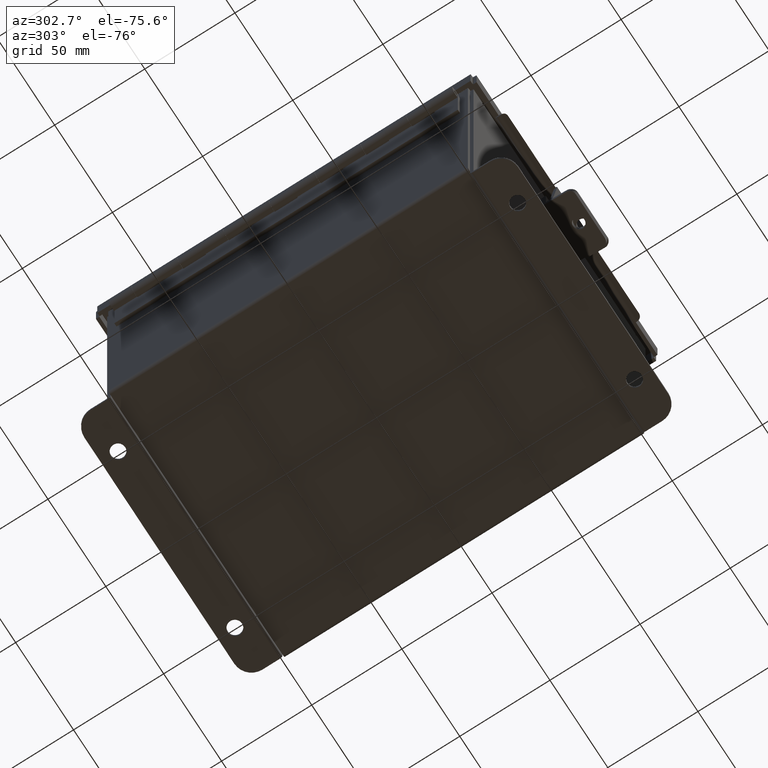
[diagram: clean part render]
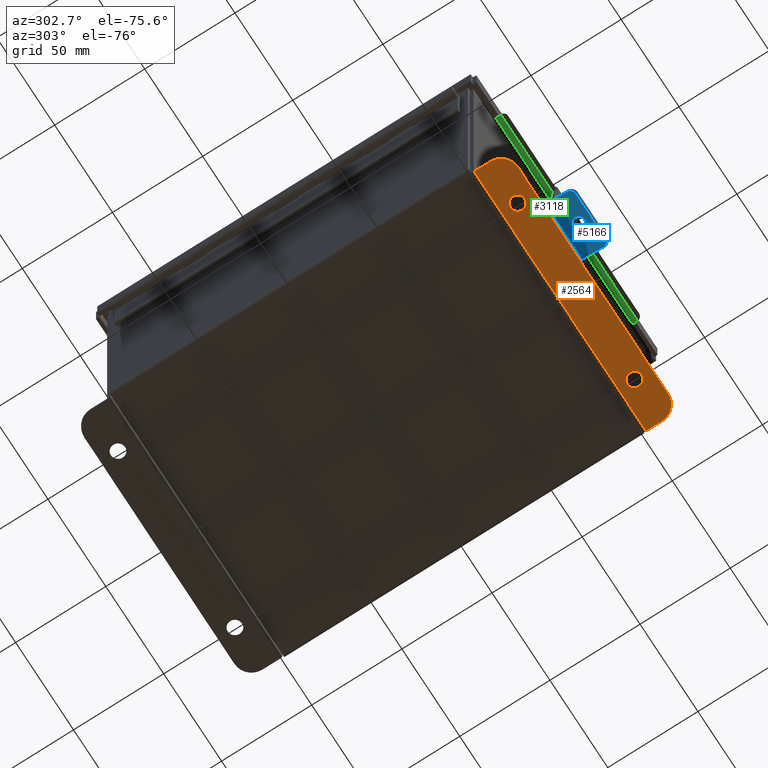
[diagram: same view with three faces highlighted in distinct colors, each labeled with its STEP entity id]
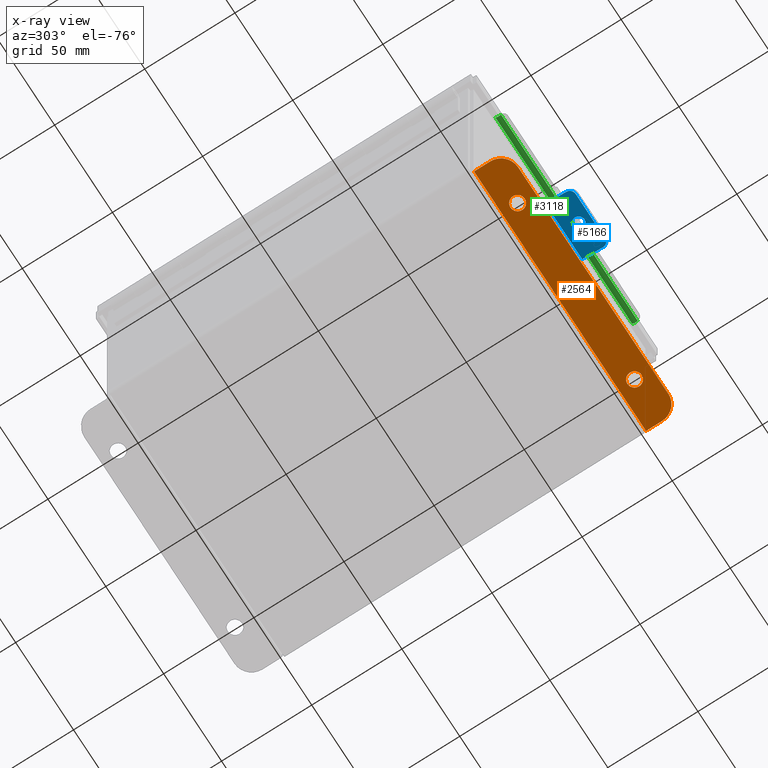
[diagram: x-ray of the same camera — body ghosted, the three highlighted faces saturated]
A machine part, auxiliary view with three faces highlighted in distinct colors.
The next image is the same camera in x-ray (body ghosted, the three faces saturated) — at least one of them is partly hidden behind the body in this view.
Their STEP definitions:

[orange] entity #2564 — the highlighted planar face has unit normal (0, -0, 1).
#272 = ORIENTED_EDGE ( 'NONE', *, *, #602, .T. ) ;
#602 = EDGE_CURVE ( 'NONE', #7254, #8454, #1671, .T. ) ;
#752 = EDGE_CURVE ( 'NONE', #11165, #7948, #15070, .T. ) ;
#768 = ORIENTED_EDGE ( 'NONE', *, *, #1474, .T. ) ;
#790 = CARTESIAN_POINT ( 'NONE',  ( 2.550300000000001300, 0.3628000000000002900, -3.186999999999997600 ) ) ;
#815 = CARTESIAN_POINT ( 'NONE',  ( -2.925299999999997800, 0.01299999999999628200, -3.186999999999996300 ) ) ;
#867 = VECTOR ( 'NONE', #3987, 39.37007874015748100 ) ;
#943 = DIRECTION ( 'NONE',  ( 0.0000000000000000000, 1.000000000000000000, -3.502369222646487000E-015 ) ) ;
#1185 = CARTESIAN_POINT ( 'NONE',  ( 2.925300000000001800, -1.092739197465705300E-014, -3.187000000000000700 ) ) ;
#1474 = EDGE_CURVE ( 'NONE', #13616, #7254, #5716, .T. ) ;
#1671 = LINE ( 'NONE', #1185, #4265 ) ;
#1682 = CARTESIAN_POINT ( 'NONE',  ( 0.0000000000000000000, -1.092739197465705300E-014, -3.187000000000000700 ) ) ;
#1700 = CARTESIAN_POINT ( 'NONE',  ( -1.987799999999997800, 0.3627999999999997300, -3.187000000000001600 ) ) ;
#1791 = CARTESIAN_POINT ( 'NONE',  ( 2.550300000000001300, 0.7378000000000000100, -3.187000000000003400 ) ) ;
#1816 = CARTESIAN_POINT ( 'NONE',  ( -2.925299999999998200, 0.3627999999999959000, -3.187000000000001600 ) ) ;
#1922 = CARTESIAN_POINT ( 'NONE',  ( -2.550299999999996900, 0.7377999999999955700, -3.187000000000003400 ) ) ;
#1983 = DIRECTION ( 'NONE',  ( 0.0000000000000000000, -1.000000000000000000, 4.370956789862820400E-015 ) ) ;
#2005 = AXIS2_PLACEMENT_3D ( 'NONE', #790, #9066, #1983 ) ;
#2140 = LINE ( 'NONE', #9601, #5641 ) ;
#2185 = CIRCLE ( 'NONE', #13813, 0.1560000000000001900 ) ;
#2355 = EDGE_CURVE ( 'NONE', #13147, #8929, #2140, .T. ) ;
#2515 = DIRECTION ( 'NONE',  ( 4.919856193148104900E-031, 1.000000000000000000, -3.702694488566362300E-015 ) ) ;
#2564 = ADVANCED_FACE ( 'NONE', ( #8629, #5820, #14595 ), #13529, .F. ) ;
#2825 = VERTEX_POINT ( 'NONE', #12725 ) ;
#2853 = VERTEX_POINT ( 'NONE', #14027 ) ;
#2880 = DIRECTION ( 'NONE',  ( 0.0000000000000000000, 3.702694488566362300E-015, 1.000000000000000000 ) ) ;
#2891 = DIRECTION ( 'NONE',  ( 0.0000000000000000000, 1.000000000000000000, -3.502369222646487000E-015 ) ) ;
#2902 = ORIENTED_EDGE ( 'NONE', *, *, #7204, .F. ) ;
#2931 = CARTESIAN_POINT ( 'NONE',  ( 1.987800000000002000, 0.3627999999999997300, -3.187000000000001600 ) ) ;
#3595 = CARTESIAN_POINT ( 'NONE',  ( 2.925300000000001800, 0.3628000000000002900, -3.187000000000001600 ) ) ;
#3677 = EDGE_CURVE ( 'NONE', #8929, #12516, #6740, .T. ) ;
#3987 = DIRECTION ( 'NONE',  ( 1.000000000000000000, 4.910036603141682400E-031, -0.0000000000000000000 ) ) ;
#4003 = LINE ( 'NONE', #14661, #867 ) ;
#4103 = DIRECTION ( 'NONE',  ( 0.0000000000000000000, 1.000000000000000000, -3.502369222646487000E-015 ) ) ;
#4129 = ORIENTED_EDGE ( 'NONE', *, *, #752, .F. ) ;
#4171 = ORIENTED_EDGE ( 'NONE', *, *, #11869, .F. ) ;
#4265 = VECTOR ( 'NONE', #11795, 39.37007874015748100 ) ;
#4457 = DIRECTION ( 'NONE',  ( 0.0000000000000000000, -3.362274453740631800E-015, -1.000000000000000000 ) ) ;
#4797 = CARTESIAN_POINT ( 'NONE',  ( 1.987800000000002000, 0.5187999999999999300, -3.187000000000002500 ) ) ;
#5180 = EDGE_LOOP ( 'NONE', ( #9231, #12083, #14900, #768, #272, #15288 ) ) ;
#5320 = DIRECTION ( 'NONE',  ( -0.0000000000000000000, -3.702694488566362300E-015, -1.000000000000000000 ) ) ;
#5641 = VECTOR ( 'NONE', #2515, 39.37007874015748100 ) ;
#5657 = AXIS2_PLACEMENT_3D ( 'NONE', #1700, #9980, #2891 ) ;
#5716 = CIRCLE ( 'NONE', #2005, 0.3750000000000000600 ) ;
#5820 = FACE_BOUND ( 'NONE', #13061, .T. ) ;
#6740 = CIRCLE ( 'NONE', #7089, 0.3750000000000000600 ) ;
#7089 = AXIS2_PLACEMENT_3D ( 'NONE', #12464, #5320, #13667 ) ;
#7204 = EDGE_CURVE ( 'NONE', #2853, #2825, #2185, .T. ) ;
#7254 = VERTEX_POINT ( 'NONE', #3595 ) ;
#7545 = CARTESIAN_POINT ( 'NONE',  ( -2.035385365534024800E-024, 0.7378000000000000100, -3.187000000000003400 ) ) ;
#7948 = VERTEX_POINT ( 'NONE', #4797 ) ;
#8060 = DIRECTION ( 'NONE',  ( 0.0000000000000000000, -3.362274453740631800E-015, -1.000000000000000000 ) ) ;
#8148 = EDGE_CURVE ( 'NONE', #13147, #8454, #4003, .T. ) ;
#8454 = VERTEX_POINT ( 'NONE', #15202 ) ;
#8629 = FACE_BOUND ( 'NONE', #12490, .T. ) ;
#8929 = VERTEX_POINT ( 'NONE', #1816 ) ;
#9066 = DIRECTION ( 'NONE',  ( -0.0000000000000000000, -3.702694488566362300E-015, -1.000000000000000000 ) ) ;
#9231 = ORIENTED_EDGE ( 'NONE', *, *, #2355, .T. ) ;
#9233 = AXIS2_PLACEMENT_3D ( 'NONE', #2931, #11225, #4103 ) ;
#9601 = CARTESIAN_POINT ( 'NONE',  ( -2.925299999999998200, -1.529834876451987200E-014, -3.186999999999996300 ) ) ;
#9980 = DIRECTION ( 'NONE',  ( 0.0000000000000000000, -3.362274453740631800E-015, -1.000000000000000000 ) ) ;
#10064 = VECTOR ( 'NONE', #14653, 39.37007874015748100 ) ;
#10716 = CIRCLE ( 'NONE', #13856, 0.1560000000000001900 ) ;
#10990 = EDGE_CURVE ( 'NONE', #2825, #2853, #11653, .T. ) ;
#11163 = DIRECTION ( 'NONE',  ( -4.919856193148104900E-031, -1.000000000000000000, 3.702694488566362300E-015 ) ) ;
#11165 = VERTEX_POINT ( 'NONE', #11435 ) ;
#11225 = DIRECTION ( 'NONE',  ( 0.0000000000000000000, -3.362274453740631800E-015, -1.000000000000000000 ) ) ;
#11435 = CARTESIAN_POINT ( 'NONE',  ( 1.987800000000002000, 0.2067999999999996000, -3.187000000000001200 ) ) ;
#11584 = CARTESIAN_POINT ( 'NONE',  ( -1.987799999999997800, 0.3627999999999997300, -3.187000000000001600 ) ) ;
#11653 = CIRCLE ( 'NONE', #5657, 0.1560000000000001900 ) ;
#11795 = DIRECTION ( 'NONE',  ( -4.919856193148104900E-031, -1.000000000000000000, 3.702694488566362300E-015 ) ) ;
#11869 = EDGE_CURVE ( 'NONE', #7948, #11165, #10716, .T. ) ;
#12083 = ORIENTED_EDGE ( 'NONE', *, *, #3677, .T. ) ;
#12464 = CARTESIAN_POINT ( 'NONE',  ( -2.550299999999996900, 0.3627999999999997300, -3.187000000000001600 ) ) ;
#12490 = EDGE_LOOP ( 'NONE', ( #12827, #2902 ) ) ;
#12516 = VERTEX_POINT ( 'NONE', #1922 ) ;
#12725 = CARTESIAN_POINT ( 'NONE',  ( -1.987799999999997800, 0.5187999999999999300, -3.187000000000002500 ) ) ;
#12791 = DIRECTION ( 'NONE',  ( 0.0000000000000000000, 1.000000000000000000, -3.502369222646487000E-015 ) ) ;
#12827 = ORIENTED_EDGE ( 'NONE', *, *, #10990, .F. ) ;
#13061 = EDGE_LOOP ( 'NONE', ( #4171, #4129 ) ) ;
#13062 = AXIS2_PLACEMENT_3D ( 'NONE', #1682, #2880, #11163 ) ;
#13147 = VERTEX_POINT ( 'NONE', #815 ) ;
#13250 = LINE ( 'NONE', #7545, #10064 ) ;
#13529 = PLANE ( 'NONE',  #13062 ) ;
#13616 = VERTEX_POINT ( 'NONE', #1791 ) ;
#13667 = DIRECTION ( 'NONE',  ( 0.0000000000000000000, -1.000000000000000000, 4.370956789862820400E-015 ) ) ;
#13813 = AXIS2_PLACEMENT_3D ( 'NONE', #11584, #4457, #12791 ) ;
#13856 = AXIS2_PLACEMENT_3D ( 'NONE', #15173, #8060, #943 ) ;
#14027 = CARTESIAN_POINT ( 'NONE',  ( -1.987799999999997800, 0.2067999999999996000, -3.187000000000001200 ) ) ;
#14595 = FACE_OUTER_BOUND ( 'NONE', #5180, .T. ) ;
#14653 = DIRECTION ( 'NONE',  ( 1.000000000000000000, 4.910036603141682400E-031, 0.0000000000000000000 ) ) ;
#14661 = CARTESIAN_POINT ( 'NONE',  ( 2.925300000000001800, 0.01300000000000065300, -3.187000000000000700 ) ) ;
#14900 = ORIENTED_EDGE ( 'NONE', *, *, #15314, .T. ) ;
#15070 = CIRCLE ( 'NONE', #9233, 0.1560000000000001900 ) ;
#15173 = CARTESIAN_POINT ( 'NONE',  ( 1.987800000000002000, 0.3627999999999997300, -3.187000000000001600 ) ) ;
#15202 = CARTESIAN_POINT ( 'NONE',  ( 2.925300000000001800, 0.01300000000000010700, -3.187000000000000700 ) ) ;
#15288 = ORIENTED_EDGE ( 'NONE', *, *, #8148, .F. ) ;
#15314 = EDGE_CURVE ( 'NONE', #12516, #13616, #13250, .T. ) ;

[blue] entity #5166 — the highlighted planar face has unit normal (0, -0.1564, 0.9877).
#260 = ORIENTED_EDGE ( 'NONE', *, *, #6632, .T. ) ;
#329 = DIRECTION ( 'NONE',  ( 0.0000000000000000000, -0.1564344650402350000, 0.9876883405951369900 ) ) ;
#502 = DIRECTION ( 'NONE',  ( 0.0000000000000000000, -0.1564344650402344800, 0.9876883405951372200 ) ) ;
#757 = LINE ( 'NONE', #13355, #3507 ) ;
#806 = CARTESIAN_POINT ( 'NONE',  ( 0.6249999999999997800, -0.3825291922937684200, 0.5715788249670738000 ) ) ;
#1635 = VERTEX_POINT ( 'NONE', #2481 ) ;
#1715 = VERTEX_POINT ( 'NONE', #3812 ) ;
#2108 = LINE ( 'NONE', #11803, #10819 ) ;
#2481 = CARTESIAN_POINT ( 'NONE',  ( 0.4999999999999997200, -0.3825291922937684200, 0.5715788249670738000 ) ) ;
#2568 = CIRCLE ( 'NONE', #2961, 0.1250000000000000300 ) ;
#2961 = AXIS2_PLACEMENT_3D ( 'NONE', #4734, #13081, #5927 ) ;
#3110 = VERTEX_POINT ( 'NONE', #4299 ) ;
#3288 = CARTESIAN_POINT ( 'NONE',  ( 0.6249999999999997800, -0.3629748841637390800, 0.4481177823926816800 ) ) ;
#3346 = ORIENTED_EDGE ( 'NONE', *, *, #5311, .F. ) ;
#3507 = VECTOR ( 'NONE', #5015, 39.37007874015748100 ) ;
#3580 = PLANE ( 'NONE',  #12686 ) ;
#3581 = VERTEX_POINT ( 'NONE', #13414 ) ;
#3812 = CARTESIAN_POINT ( 'NONE',  ( 0.6249999999999997800, -0.2906256832361269700, -0.008677094549546618100 ) ) ;
#4299 = CARTESIAN_POINT ( 'NONE',  ( -0.5000000000000002200, -0.3825291922937684200, 0.5715788249670738000 ) ) ;
#4344 = AXIS2_PLACEMENT_3D ( 'NONE', #4628, #12972, #5832 ) ;
#4628 = CARTESIAN_POINT ( 'NONE',  ( 0.0000000000000000000, -0.3424819692434683000, 0.3187306097747185700 ) ) ;
#4734 = CARTESIAN_POINT ( 'NONE',  ( 0.4999999999999997200, -0.3629748841637390800, 0.4481177823926816800 ) ) ;
#4756 = DIRECTION ( 'NONE',  ( 0.0000000000000000000, -0.1564344650402347500, 0.9876883405951371000 ) ) ;
#5015 = DIRECTION ( 'NONE',  ( -1.000000000000000000, 0.0000000000000000000, 0.0000000000000000000 ) ) ;
#5166 = ADVANCED_FACE ( 'NONE', ( #10587, #7827 ), #3580, .F. ) ;
#5211 = AXIS2_PLACEMENT_3D ( 'NONE', #14721, #7599, #502 ) ;
#5311 = EDGE_CURVE ( 'NONE', #3581, #11428, #8729, .T. ) ;
#5605 = VERTEX_POINT ( 'NONE', #10371 ) ;
#5763 = EDGE_LOOP ( 'NONE', ( #13405, #6939, #12876, #11646, #11937, #260 ) ) ;
#5832 = DIRECTION ( 'NONE',  ( 0.0000000000000000000, -0.1564344650402344800, 0.9876883405951372200 ) ) ;
#5927 = DIRECTION ( 'NONE',  ( 0.0000000000000000000, -0.1564344650402350000, 0.9876883405951369900 ) ) ;
#6446 = LINE ( 'NONE', #806, #12392 ) ;
#6571 = AXIS2_PLACEMENT_3D ( 'NONE', #14548, #7432, #329 ) ;
#6632 = EDGE_CURVE ( 'NONE', #12670, #1635, #2568, .T. ) ;
#6939 = ORIENTED_EDGE ( 'NONE', *, *, #10108, .T. ) ;
#7132 = CARTESIAN_POINT ( 'NONE',  ( 1.530808498934191800E-017, -0.3229276611134389000, 0.1952695672003264000 ) ) ;
#7432 = DIRECTION ( 'NONE',  ( 0.0000000000000000000, -0.9876883405951371000, -0.1564344650402347500 ) ) ;
#7599 = DIRECTION ( 'NONE',  ( 0.0000000000000000000, -0.9876883405951371000, -0.1564344650402347500 ) ) ;
#7647 = EDGE_CURVE ( 'NONE', #1715, #12670, #6446, .T. ) ;
#7827 = FACE_OUTER_BOUND ( 'NONE', #5763, .T. ) ;
#8513 = EDGE_CURVE ( 'NONE', #11428, #3581, #12554, .T. ) ;
#8527 = LINE ( 'NONE', #10317, #12054 ) ;
#8729 = CIRCLE ( 'NONE', #5211, 0.1250000000000000000 ) ;
#9491 = CARTESIAN_POINT ( 'NONE',  ( -0.6250000000000003300, -0.3825291922937684200, 0.5715788249670738000 ) ) ;
#10108 = EDGE_CURVE ( 'NONE', #3110, #5605, #10578, .T. ) ;
#10109 = EDGE_CURVE ( 'NONE', #1635, #3110, #757, .T. ) ;
#10317 = CARTESIAN_POINT ( 'NONE',  ( -0.6250000000000003300, -0.3825291922937684200, 0.5715788249670738000 ) ) ;
#10371 = CARTESIAN_POINT ( 'NONE',  ( -0.6250000000000003300, -0.3629748841637390800, 0.4481177823926816800 ) ) ;
#10514 = EDGE_CURVE ( 'NONE', #5605, #13054, #8527, .T. ) ;
#10578 = CIRCLE ( 'NONE', #6571, 0.1250000000000000300 ) ;
#10587 = FACE_BOUND ( 'NONE', #12859, .T. ) ;
#10666 = DIRECTION ( 'NONE',  ( -1.000000000000000000, -1.333134263018087700E-017, 8.417078472395434900E-017 ) ) ;
#10819 = VECTOR ( 'NONE', #10666, 39.37007874015748100 ) ;
#11428 = VERTEX_POINT ( 'NONE', #7132 ) ;
#11646 = ORIENTED_EDGE ( 'NONE', *, *, #14704, .F. ) ;
#11803 = CARTESIAN_POINT ( 'NONE',  ( -0.6250000000000003300, -0.2906256832361269700, -0.008677094549546522700 ) ) ;
#11888 = DIRECTION ( 'NONE',  ( -0.0000000000000000000, 0.9876883405951371000, 0.1564344650402347500 ) ) ;
#11937 = ORIENTED_EDGE ( 'NONE', *, *, #7647, .T. ) ;
#12054 = VECTOR ( 'NONE', #15054, 39.37007874015748100 ) ;
#12077 = ORIENTED_EDGE ( 'NONE', *, *, #8513, .F. ) ;
#12392 = VECTOR ( 'NONE', #12621, 39.37007874015748100 ) ;
#12554 = CIRCLE ( 'NONE', #4344, 0.1250000000000000000 ) ;
#12621 = DIRECTION ( 'NONE',  ( 0.0000000000000000000, -0.1564344650402347500, 0.9876883405951371000 ) ) ;
#12670 = VERTEX_POINT ( 'NONE', #3288 ) ;
#12686 = AXIS2_PLACEMENT_3D ( 'NONE', #9491, #11888, #4756 ) ;
#12859 = EDGE_LOOP ( 'NONE', ( #3346, #12077 ) ) ;
#12876 = ORIENTED_EDGE ( 'NONE', *, *, #10514, .T. ) ;
#12972 = DIRECTION ( 'NONE',  ( 0.0000000000000000000, -0.9876883405951371000, -0.1564344650402347500 ) ) ;
#13054 = VERTEX_POINT ( 'NONE', #13688 ) ;
#13081 = DIRECTION ( 'NONE',  ( 0.0000000000000000000, -0.9876883405951371000, -0.1564344650402347500 ) ) ;
#13355 = CARTESIAN_POINT ( 'NONE',  ( -0.6250000000000003300, -0.3825291922937684200, 0.5715788249670738000 ) ) ;
#13405 = ORIENTED_EDGE ( 'NONE', *, *, #10109, .T. ) ;
#13414 = CARTESIAN_POINT ( 'NONE',  ( 0.0000000000000000000, -0.3620362773734976400, 0.4421916523491106800 ) ) ;
#13688 = CARTESIAN_POINT ( 'NONE',  ( -0.6250000000000003300, -0.2906256832361269700, -0.008677094549546533100 ) ) ;
#14548 = CARTESIAN_POINT ( 'NONE',  ( -0.5000000000000002200, -0.3629748841637390800, 0.4481177823926816800 ) ) ;
#14704 = EDGE_CURVE ( 'NONE', #1715, #13054, #2108, .T. ) ;
#14721 = CARTESIAN_POINT ( 'NONE',  ( 0.0000000000000000000, -0.3424819692434683000, 0.3187306097747185700 ) ) ;
#15054 = DIRECTION ( 'NONE',  ( 0.0000000000000000000, 0.1564344650402347500, -0.9876883405951371000 ) ) ;

[green] entity #3118 — the highlighted cylindrical surface (edge-blend (fillet) strip) has radius 2.126 mm, axis along (1, -0, 0).
#47 = VERTEX_POINT ( 'NONE', #1062 ) ;
#385 = CARTESIAN_POINT ( 'NONE',  ( -2.324478932188134300, -4.165250000000000300, 0.4717115427318804800 ) ) ;
#1062 = CARTESIAN_POINT ( 'NONE',  ( 2.324478932188136100, -4.081550000000000000, 0.4717115427318804800 ) ) ;
#1193 = EDGE_CURVE ( 'NONE', #13438, #2514, #3151, .T. ) ;
#1488 = ORIENTED_EDGE ( 'NONE', *, *, #1733, .F. ) ;
#1733 = EDGE_CURVE ( 'NONE', #12633, #47, #5525, .T. ) ;
#1843 = EDGE_CURVE ( 'NONE', #10802, #2514, #6481, .T. ) ;
#1974 = CARTESIAN_POINT ( 'NONE',  ( 2.324478932188136100, -4.165250000000000300, 0.4717115427318804800 ) ) ;
#2374 = ORIENTED_EDGE ( 'NONE', *, *, #9681, .F. ) ;
#2417 = EDGE_LOOP ( 'NONE', ( #1488, #2374, #8373, #8005, #15245, #8788 ) ) ;
#2514 = VERTEX_POINT ( 'NONE', #5085 ) ;
#2778 = VERTEX_POINT ( 'NONE', #6760 ) ;
#2845 = DIRECTION ( 'NONE',  ( 1.000000000000000000, -1.160137203438067900E-016, -1.201430984006366000E-016 ) ) ;
#3118 = ADVANCED_FACE ( 'NONE', ( #11023 ), #4317, .T. ) ;
#3150 = DIRECTION ( 'NONE',  ( 0.0000000000000000000, -1.305542649301926600E-014, 1.000000000000000000 ) ) ;
#3151 = CIRCLE ( 'NONE', #13738, 0.08369999999999944200 ) ;
#3305 = VECTOR ( 'NONE', #2845, 39.37007874015748100 ) ;
#4317 = CYLINDRICAL_SURFACE ( 'NONE', #11640, 0.08369999999999946900 ) ;
#4653 = DIRECTION ( 'NONE',  ( -1.000000000000000000, -0.0000000000000000000, -0.0000000000000000000 ) ) ;
#4805 = CARTESIAN_POINT ( 'NONE',  ( 2.324478932188136100, -4.165250000000000300, 0.4717115427318804800 ) ) ;
#5085 = CARTESIAN_POINT ( 'NONE',  ( 2.324478932188136100, -4.207100000000001400, 0.5441978690286367600 ) ) ;
#5114 = EDGE_CURVE ( 'NONE', #10802, #2778, #14131, .T. ) ;
#5456 = AXIS2_PLACEMENT_3D ( 'NONE', #1974, #10264, #3150 ) ;
#5498 = AXIS2_PLACEMENT_3D ( 'NONE', #11785, #4653, #12995 ) ;
#5525 = LINE ( 'NONE', #9731, #14290 ) ;
#5617 = CARTESIAN_POINT ( 'NONE',  ( -2.324478932188134300, -4.081550000000000000, 0.4717115427318807600 ) ) ;
#6008 = DIRECTION ( 'NONE',  ( 0.0000000000000000000, 0.0000000000000000000, 1.000000000000000000 ) ) ;
#6481 = LINE ( 'NONE', #12343, #3305 ) ;
#6651 = DIRECTION ( 'NONE',  ( -1.000000000000000000, -0.0000000000000000000, -0.0000000000000000000 ) ) ;
#6711 = DIRECTION ( 'NONE',  ( 0.0000000000000000000, -0.5000000000000031100, 0.8660254037844369300 ) ) ;
#6760 = CARTESIAN_POINT ( 'NONE',  ( -2.324478932188134300, -4.083014423757111500, 0.4873000000000001800 ) ) ;
#8005 = ORIENTED_EDGE ( 'NONE', *, *, #1843, .T. ) ;
#8373 = ORIENTED_EDGE ( 'NONE', *, *, #5114, .F. ) ;
#8788 = ORIENTED_EDGE ( 'NONE', *, *, #10486, .F. ) ;
#9106 = CIRCLE ( 'NONE', #11128, 0.08369999999999944200 ) ;
#9681 = EDGE_CURVE ( 'NONE', #2778, #12633, #9106, .T. ) ;
#9731 = CARTESIAN_POINT ( 'NONE',  ( -2.324478932188134300, -4.081550000000000900, 0.4717115427318804800 ) ) ;
#10264 = DIRECTION ( 'NONE',  ( 1.000000000000000000, 0.0000000000000000000, 0.0000000000000000000 ) ) ;
#10486 = EDGE_CURVE ( 'NONE', #47, #13438, #15218, .T. ) ;
#10802 = VERTEX_POINT ( 'NONE', #13180 ) ;
#10854 = CARTESIAN_POINT ( 'NONE',  ( 2.324478932188136100, -4.083014423757111500, 0.4873000000000002300 ) ) ;
#10925 = DIRECTION ( 'NONE',  ( 1.000000000000000000, 0.0000000000000000000, 0.0000000000000000000 ) ) ;
#11023 = FACE_OUTER_BOUND ( 'NONE', #2417, .T. ) ;
#11128 = AXIS2_PLACEMENT_3D ( 'NONE', #13772, #6651, #14977 ) ;
#11640 = AXIS2_PLACEMENT_3D ( 'NONE', #385, #13836, #6711 ) ;
#11785 = CARTESIAN_POINT ( 'NONE',  ( -2.324478932188134300, -4.165250000000000300, 0.4717115427318804800 ) ) ;
#12343 = CARTESIAN_POINT ( 'NONE',  ( -4.254203690968461700E-016, -4.207099999999999600, 0.5441978690286386500 ) ) ;
#12633 = VERTEX_POINT ( 'NONE', #5617 ) ;
#12995 = DIRECTION ( 'NONE',  ( 0.0000000000000000000, 0.0000000000000000000, 1.000000000000000000 ) ) ;
#13158 = DIRECTION ( 'NONE',  ( 1.000000000000000000, 0.0000000000000000000, 0.0000000000000000000 ) ) ;
#13180 = CARTESIAN_POINT ( 'NONE',  ( -2.324478932188134300, -4.207099999999999600, 0.5441978690286386500 ) ) ;
#13438 = VERTEX_POINT ( 'NONE', #10854 ) ;
#13738 = AXIS2_PLACEMENT_3D ( 'NONE', #4805, #13158, #6008 ) ;
#13772 = CARTESIAN_POINT ( 'NONE',  ( -2.324478932188134300, -4.165250000000000300, 0.4717115427318804800 ) ) ;
#13836 = DIRECTION ( 'NONE',  ( -1.000000000000000000, -0.0000000000000000000, -0.0000000000000000000 ) ) ;
#14131 = CIRCLE ( 'NONE', #5498, 0.08369999999999944200 ) ;
#14290 = VECTOR ( 'NONE', #10925, 39.37007874015748100 ) ;
#14977 = DIRECTION ( 'NONE',  ( 0.0000000000000000000, 0.0000000000000000000, 1.000000000000000000 ) ) ;
#15218 = CIRCLE ( 'NONE', #5456, 0.08369999999999944200 ) ;
#15245 = ORIENTED_EDGE ( 'NONE', *, *, #1193, .F. ) ;